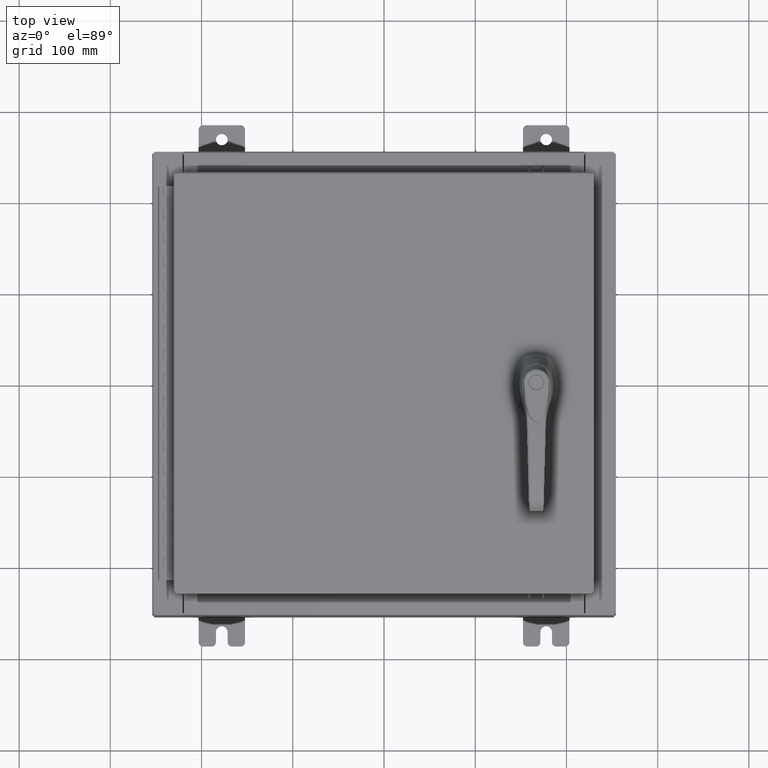
[diagram: clean part render]
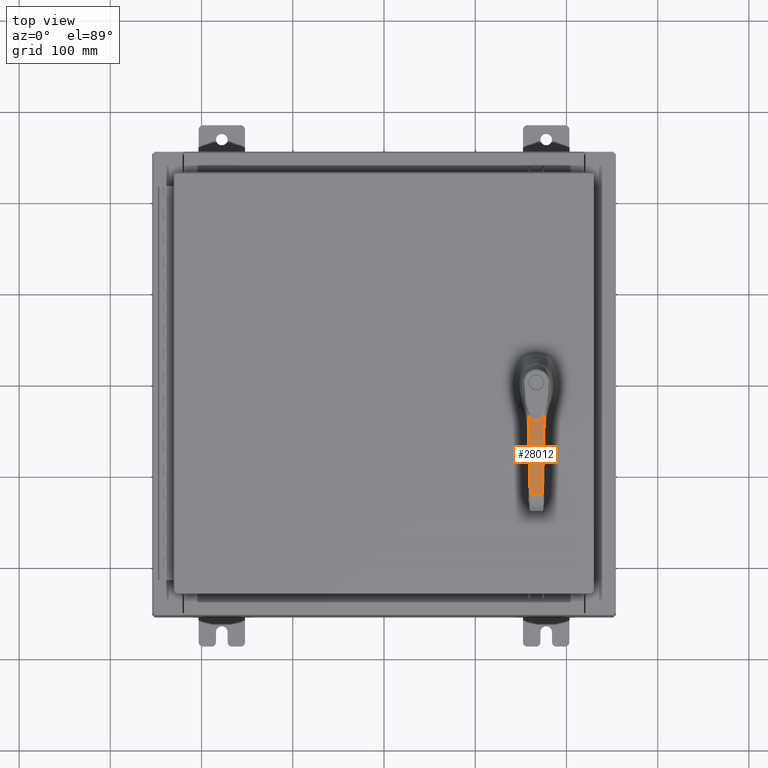
[diagram: same view with one face highlighted and labeled with its STEP entity id]
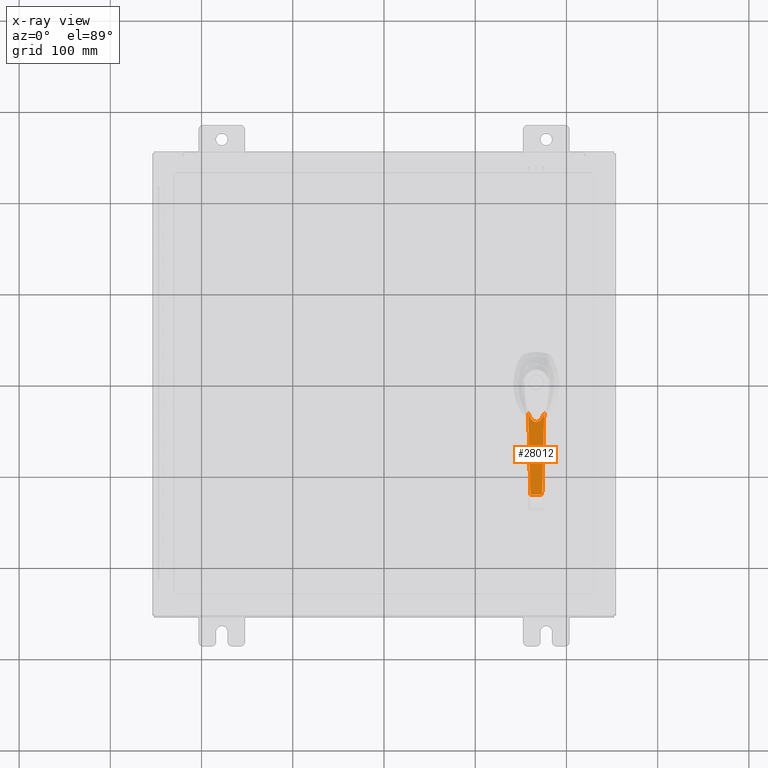
[diagram: x-ray of the same camera — body ghosted, the highlighted face saturated]
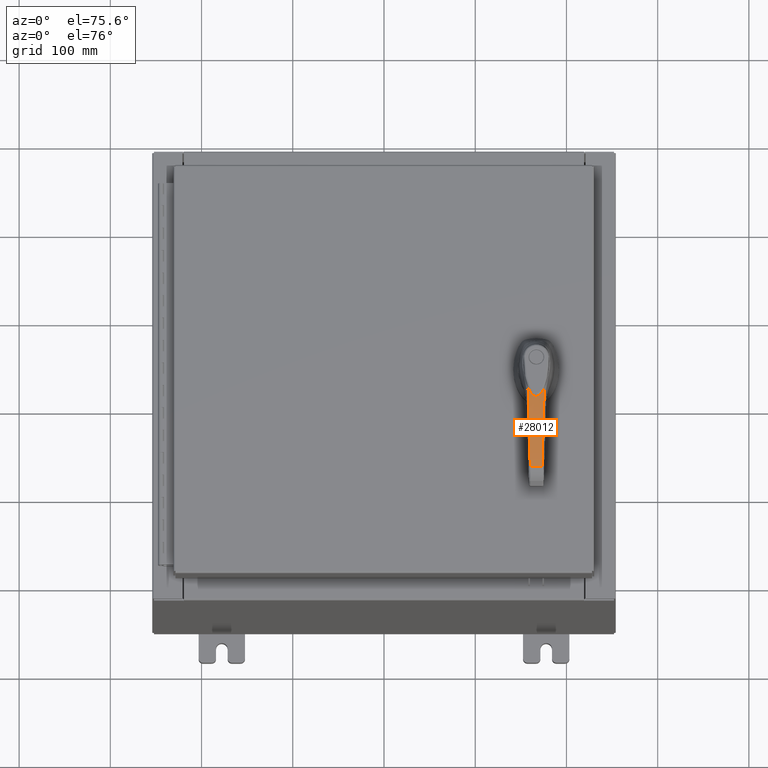
[diagram: same view with one face highlighted and labeled with its STEP entity id]
A machine part, top view. The second image highlights one B-rep face of the part: STEP entity #28012.
The next image is the same camera in x-ray: the body ghosted, the highlighted face saturated — about 0% of this face is hidden behind the body in this view.
A second angle (auxiliary view) of the same face is appended — the face is thin or edge-on in the first view.
In plain terms, the highlighted cylindrical surface (partial cylindrical patch) has radius 300 mm, axis along (-1, 0, 0).
Its self-contained STEP definition (entity closure, byte-faithful):
#600 = CARTESIAN_POINT ( 'NONE',  ( 4.805199877897497800, -0.2549857665720962600, 1.824333981427789200 ) ) ;
#1817 = CARTESIAN_POINT ( 'NONE',  ( 3.722113557932751800, -0.2831583025764871600, 1.939610180467802100 ) ) ;
#1870 = CARTESIAN_POINT ( 'NONE',  ( 1.285167403707582200, 0.3546133445978475500, 1.792860362760506900 ) ) ;
#2522 = CARTESIAN_POINT ( 'NONE',  ( 4.260082169442998000, 0.2691715254287476200, 1.889412627025917900 ) ) ;
#2900 = CARTESIAN_POINT ( 'NONE',  ( 3.180696913865973800, 0.2972412797304932500, 1.940904307400741700 ) ) ;
#5355 = CARTESIAN_POINT ( 'NONE',  ( 1.362201980543985300, 0.3225149545132401400, 1.804919336107090300 ) ) ;
#5728 = CARTESIAN_POINT ( 'NONE',  ( 1.516830157375129700, 0.2373842696045043200, 1.827543091604354200 ) ) ;
#6070 = CARTESIAN_POINT ( 'NONE',  ( 1.630415031557479000, 0.1335971382965835100, 1.842834560165933700 ) ) ;
#6442 = CARTESIAN_POINT ( 'NONE',  ( 1.666943250047645500, 0.06925946003727173600, 1.847514415332586000 ) ) ;
#6817 = CARTESIAN_POINT ( 'NONE',  ( 1.658104608024415500, -0.08997679606067111900, 1.846394063252973600 ) ) ;
#7175 = CARTESIAN_POINT ( 'NONE',  ( 1.549882932702339100, -0.2132559411452200100, 1.832109519501149200 ) ) ;
#7528 = CARTESIAN_POINT ( 'NONE',  ( 1.417457569571607400, -0.2959139997767265000, 1.813240278477140900 ) ) ;
#8184 = CARTESIAN_POINT ( 'NONE',  ( 1.285167403707582200, 0.3546133445978475500, 1.792860362760506900 ) ) ;
#10374 = CARTESIAN_POINT ( 'NONE',  ( 2.633561730653564600, -0.3114730037977832000, 1.942212103133131400 ) ) ;
#11059 = CARTESIAN_POINT ( 'NONE',  ( 3.842159367048334900, 0.2800416382408119600, 1.921681097564919200 ) ) ;
#11417 = CARTESIAN_POINT ( 'NONE',  ( 2.823583190880748700, 0.3065276448944568900, 1.937522127742032000 ) ) ;
#12804 = CARTESIAN_POINT ( 'NONE',  ( 4.805199877897498700, 6.099088612688667000, 1.824333981427796800 ) ) ;
#13891 = CARTESIAN_POINT ( 'NONE',  ( 1.395339831983435400, 0.3069710070873777900, 1.809941467447429500 ) ) ;
#14263 = CARTESIAN_POINT ( 'NONE',  ( 1.528395749153938200, 0.2292404292824162500, 1.829150185326992000 ) ) ;
#14643 = CARTESIAN_POINT ( 'NONE',  ( 1.632357006304432100, 0.1310003132830429600, 1.843086230139450200 ) ) ;
#14998 = CARTESIAN_POINT ( 'NONE',  ( 1.680175953285402800, 0.02266160196180658600, 1.849181196457984500 ) ) ;
#15350 = CARTESIAN_POINT ( 'NONE',  ( 1.644906487703452900, -0.1129549742528642200, 1.844705813593938900 ) ) ;
#15737 = CARTESIAN_POINT ( 'NONE',  ( 1.536332061329272400, -0.2234729747293736600, 1.830247252460752700 ) ) ;
#16106 = CARTESIAN_POINT ( 'NONE',  ( 1.413946465048461000, -0.2977029543502123800, 1.812719044079251300 ) ) ;
#16511 = VECTOR ( 'NONE', #81081, 39.37007874015748100 ) ;
#18001 = FACE_OUTER_BOUND ( 'NONE', #80325, .T. ) ;
#18954 = CARTESIAN_POINT ( 'NONE',  ( 1.549936709521859200, -0.3396595521461254200, 1.832114909085228900 ) ) ;
#19604 = CARTESIAN_POINT ( 'NONE',  ( 1.549936709521846800, 0.3396595521461276400, 1.832114909085227800 ) ) ;
#19627 = CARTESIAN_POINT ( 'NONE',  ( 3.523797029380388900, 0.2883190942661038000, 1.935318005950533900 ) ) ;
#20016 = CARTESIAN_POINT ( 'NONE',  ( 2.357254433555596100, 0.3186526733585897700, 1.915122674931474000 ) ) ;
#21757 = AXIS2_PLACEMENT_3D ( 'NONE', #46243, #72061, #80605 ) ;
#22515 = CARTESIAN_POINT ( 'NONE',  ( 1.408249181654880800, 0.3005784227495936200, 1.811871312986576200 ) ) ;
#22731 = VERTEX_POINT ( 'NONE', #600 ) ;
#22890 = CARTESIAN_POINT ( 'NONE',  ( 1.531099334706958400, 0.2272923127439849300, 1.829524427485566400 ) ) ;
#23236 = CARTESIAN_POINT ( 'NONE',  ( 1.632892665029204600, 0.1302765233638317500, 1.843155604267188800 ) ) ;
#23293 = CARTESIAN_POINT ( 'NONE',  ( 1.372892883534211400, -0.3469424119739025200, 1.806884306011914200 ) ) ;
#23600 = CARTESIAN_POINT ( 'NONE',  ( 1.678980772138699100, -0.02348651453882577600, 1.849031485695049800 ) ) ;
#23981 = CARTESIAN_POINT ( 'NONE',  ( 1.635815798552251900, -0.1262595667975484100, 1.843533802100511200 ) ) ;
#24348 = CARTESIAN_POINT ( 'NONE',  ( 1.533023177175514500, -0.2258956494556922100, 1.829790409659595200 ) ) ;
#24713 = ORIENTED_EDGE ( 'NONE', *, *, #37835, .F. ) ;
#24715 = CARTESIAN_POINT ( 'NONE',  ( 1.412839862362140300, -0.2982642543102374000, 1.812554586203149100 ) ) ;
#25375 = CARTESIAN_POINT ( 'NONE',  ( 1.461149604711797800, 0.3419711910575377000, 1.819977865742887100 ) ) ;
#26831 = VERTEX_POINT ( 'NONE', #19604 ) ;
#27218 = CARTESIAN_POINT ( 'NONE',  ( 4.266296091497493700, -0.2690033809075309500, 1.900627307953369100 ) ) ;
#28012 = ADVANCED_FACE ( 'NONE', ( #18001 ), #106138, .T. ) ;
#28287 = CARTESIAN_POINT ( 'NONE',  ( 3.354255696629979200, 0.2927274858646580200, 1.939252233246042200 ) ) ;
#28645 = CARTESIAN_POINT ( 'NONE',  ( 1.962192344927161000, 0.3289308373534579100, 1.881644855761428500 ) ) ;
#30991 = EDGE_CURVE ( 'NONE', #22731, #63968, #107341, .T. ) ;
#31128 = CARTESIAN_POINT ( 'NONE',  ( 1.411289339368781500, 0.2990482287359080300, 1.812323976823128300 ) ) ;
#31487 = CARTESIAN_POINT ( 'NONE',  ( 1.531841238162604800, 0.2267549729690697100, 1.829627039123031400 ) ) ;
#31847 = CARTESIAN_POINT ( 'NONE',  ( 1.647126988818375700, 0.1096758325861646300, 1.844991371880551300 ) ) ;
#32222 = CARTESIAN_POINT ( 'NONE',  ( 1.673618130089371300, -0.04931904063699860100, 1.848357284676167800 ) ) ;
#32570 = CARTESIAN_POINT ( 'NONE',  ( 1.633523690778699000, -0.1294182121702274500, 1.843237296713774200 ) ) ;
#32941 = CARTESIAN_POINT ( 'NONE',  ( 1.531958825236964300, -0.2266696006880501200, 1.829643296008423000 ) ) ;
#33303 = CARTESIAN_POINT ( 'NONE',  ( 1.331296485917110600, -0.3367782127205229400, 1.800234481340108100 ) ) ;
#36232 = B_SPLINE_CURVE_WITH_KNOTS ( 'NONE', 3,
 ( #8184, #50663, #25375, #85027 ),
 .UNSPECIFIED., .F., .F.,
 ( 4, 4 ),
 ( 0.0000000000000000000, 1.000000000000000000 ),
 .UNSPECIFIED. ) ;
#36812 = CARTESIAN_POINT ( 'NONE',  ( 3.255921162986642200, 0.2952847344197932500, 1.940502775483823500 ) ) ;
#37204 = CARTESIAN_POINT ( 'NONE',  ( 1.638260262526211000, 0.3373621368790610300, 1.844188585699166700 ) ) ;
#37835 = EDGE_CURVE ( 'NONE', #74363, #56092, #60963, .T. ) ;
#39296 = CARTESIAN_POINT ( 'NONE',  ( 1.285167403707582200, 0.3546133445978475500, 1.792860362760506900 ) ) ;
#39653 = CARTESIAN_POINT ( 'NONE',  ( 1.412147350919589000, 0.2986147853169404100, 1.812451616407730400 ) ) ;
#40037 = CARTESIAN_POINT ( 'NONE',  ( 1.572688659303551200, 0.1951527432348522400, 1.835214844775211200 ) ) ;
#40141 = ORIENTED_EDGE ( 'NONE', *, *, #30991, .T. ) ;
#40403 = CARTESIAN_POINT ( 'NONE',  ( 1.659580715408763200, 0.08662144301095860100, 1.846580881107003000 ) ) ;
#40759 = CARTESIAN_POINT ( 'NONE',  ( 1.668765304187866500, -0.06434175467436248400, 1.847744838486969500 ) ) ;
#41117 = CARTESIAN_POINT ( 'NONE',  ( 1.632785392386055400, -0.1304217021505222100, 1.843141712585303300 ) ) ;
#41492 = CARTESIAN_POINT ( 'NONE',  ( 1.496057899066953100, -0.2514591596072142700, 1.824640546464775000 ) ) ;
#42049 = VERTEX_POINT ( 'NONE', #1870 ) ;
#45021 = CARTESIAN_POINT ( 'NONE',  ( 4.805199877897500500, 0.2549857665720995400, 1.824333981427788100 ) ) ;
#45399 = CARTESIAN_POINT ( 'NONE',  ( 3.197470930382348100, 0.2968049740498405200, 1.940850218433543400 ) ) ;
#46243 = CARTESIAN_POINT ( 'NONE',  ( 3.149606299212603500, 0.3588687022006241700, -9.870078740157508100 ) ) ;
#48193 = CARTESIAN_POINT ( 'NONE',  ( 1.456517634884642700, 0.2752119614751065700, 1.818981777874296900 ) ) ;
#48552 = CARTESIAN_POINT ( 'NONE',  ( 1.609689720394131800, 0.1588428430745499600, 1.840131652460313500 ) ) ;
#48828 = CARTESIAN_POINT ( 'NONE',  ( 1.285167405151898900, -0.3546133440856402700, 1.792860362220509000 ) ) ;
#48913 = CARTESIAN_POINT ( 'NONE',  ( 1.665449941461012000, 0.07307405170699191000, 1.847325382728708200 ) ) ;
#48968 = CARTESIAN_POINT ( 'NONE',  ( 1.549936709521859200, -0.3396595521461254200, 1.832114909085228900 ) ) ;
#49307 = CARTESIAN_POINT ( 'NONE',  ( 1.667452722112523700, -0.06791437558086997600, 1.847578869016394800 ) ) ;
#49664 = CARTESIAN_POINT ( 'NONE',  ( 1.605775901944855900, -0.1635624813666075900, 1.839624697243182900 ) ) ;
#50017 = CARTESIAN_POINT ( 'NONE',  ( 1.450862142650990700, -0.2781988563434922300, 1.818152528769777100 ) ) ;
#50663 = CARTESIAN_POINT ( 'NONE',  ( 1.372892883534752700, 0.3469424119738809300, 1.806884306011986400 ) ) ;
#52404 = EDGE_CURVE ( 'NONE', #42049, #26831, #36232, .T. ) ;
#52679 = B_SPLINE_CURVE_WITH_KNOTS ( 'NONE', 3,
 ( #104059, #27218, #1817, #61512, #10374, #70084, #18954 ),
 .UNSPECIFIED., .F., .F.,
 ( 4, 3, 4 ),
 ( 0.0000000000000000000, 0.4999999999999983900, 1.000000000000000000 ),
 .UNSPECIFIED. ) ;
#53575 = CARTESIAN_POINT ( 'NONE',  ( 4.384581782162142900, 0.2659316760357955400, 1.876757077655752500 ) ) ;
#53844 = CARTESIAN_POINT ( 'NONE',  ( 1.308225132359816000, 0.3456984148396877200, 1.796546292019678000 ) ) ;
#53928 = CARTESIAN_POINT ( 'NONE',  ( 3.183455179332789400, 0.2971695341875286700, 1.940896711539998400 ) ) ;
#56092 = VERTEX_POINT ( 'NONE', #48828 ) ;
#56411 = CARTESIAN_POINT ( 'NONE',  ( 1.330367034998294600, 0.3365594585218298400, 1.800015887332631500 ) ) ;
#56764 = CARTESIAN_POINT ( 'NONE',  ( 1.500882007459664000, 0.2481468865976217700, 1.825310919166964500 ) ) ;
#57138 = CARTESIAN_POINT ( 'NONE',  ( 1.627642221730812900, 0.1372262118340440700, 1.842474734026389200 ) ) ;
#57516 = CARTESIAN_POINT ( 'NONE',  ( 1.666720180148476300, 0.06983946041972091700, 1.847486187034462300 ) ) ;
#57885 = CARTESIAN_POINT ( 'NONE',  ( 1.662946339963034200, -0.07969119123599420500, 1.847008659323605500 ) ) ;
#58258 = CARTESIAN_POINT ( 'NONE',  ( 1.567082441918977100, -0.1995284965863699800, 1.834452944274891600 ) ) ;
#58629 = CARTESIAN_POINT ( 'NONE',  ( 1.422341089794102200, -0.2934036132516535400, 1.813963700160034400 ) ) ;
#59843 = ORIENTED_EDGE ( 'NONE', *, *, #91224, .T. ) ;
#60963 = B_SPLINE_CURVE_WITH_KNOTS ( 'NONE', 3,
 ( #48968, #82992, #23293, #108732 ),
 .UNSPECIFIED., .F., .F.,
 ( 4, 4 ),
 ( 0.0000000000000000000, 1.000000000000000000 ),
 .UNSPECIFIED. ) ;
#61512 = CARTESIAN_POINT ( 'NONE',  ( 3.177837644293160400, -0.2973156531871335400, 1.940911141800473400 ) ) ;
#62188 = CARTESIAN_POINT ( 'NONE',  ( 3.988872018762672500, 0.2762265065312558000, 1.911874702511223000 ) ) ;
#62566 = CARTESIAN_POINT ( 'NONE',  ( 2.994844391632361300, 0.3020755544132426300, 1.941348543382798200 ) ) ;
#63968 = VERTEX_POINT ( 'NONE', #102425 ) ;
#65024 = CARTESIAN_POINT ( 'NONE',  ( 1.377774985390536600, 0.3154086851259946300, 1.807295794097445000 ) ) ;
#65400 = CARTESIAN_POINT ( 'NONE',  ( 1.524578228761909200, 0.2319618882066597800, 1.828620816553897500 ) ) ;
#65763 = CARTESIAN_POINT ( 'NONE',  ( 1.631777938687824800, 0.1317797834924201400, 1.843011216588310100 ) ) ;
#66128 = CARTESIAN_POINT ( 'NONE',  ( 1.675872596846177400, 0.04566907200706862800, 1.848644063507536100 ) ) ;
#66512 = CARTESIAN_POINT ( 'NONE',  ( 1.649525308882284500, -0.1053112417757835900, 1.845297665867068100 ) ) ;
#66888 = CARTESIAN_POINT ( 'NONE',  ( 1.540911026017882000, -0.2200747778046543400, 1.830878084273672900 ) ) ;
#67253 = CARTESIAN_POINT ( 'NONE',  ( 1.415001884902490300, -0.2971666495078749700, 1.812875826676425300 ) ) ;
#70084 = CARTESIAN_POINT ( 'NONE',  ( 2.089199057867315600, -0.3256326111308620600, 1.905831137458305200 ) ) ;
#70800 = CARTESIAN_POINT ( 'NONE',  ( 3.605464906671501400, 0.2861957975425992700, 1.932408694108106700 ) ) ;
#71169 = CARTESIAN_POINT ( 'NONE',  ( 2.504789629931729600, 0.3148162043671304300, 1.924408988684548600 ) ) ;
#72061 = DIRECTION ( 'NONE',  ( 1.638255005703863000E-029, -1.000000000000000000, -1.577721810442019400E-030 ) ) ;
#73631 = CARTESIAN_POINT ( 'NONE',  ( 1.403971242061125700, 0.3027154104630283000, 1.811233171745016100 ) ) ;
#73985 = CARTESIAN_POINT ( 'NONE',  ( 1.530290378760434900, 0.2278771327639638500, 1.829412508182429500 ) ) ;
#74344 = CARTESIAN_POINT ( 'NONE',  ( 1.632741932373676300, 0.1304805322846280300, 1.843136084596472400 ) ) ;
#74363 = VERTEX_POINT ( 'NONE', #91776 ) ;
#74724 = CARTESIAN_POINT ( 'NONE',  ( 1.680095335233363900, -0.01197136183687350400, 1.849171087712747400 ) ) ;
#75091 = CARTESIAN_POINT ( 'NONE',  ( 1.638941990221852300, -0.1218315539769589500, 1.843937560668221100 ) ) ;
#75439 = CARTESIAN_POINT ( 'NONE',  ( 1.534019329573107300, -0.2251692678404840200, 1.829928034573032400 ) ) ;
#75809 = CARTESIAN_POINT ( 'NONE',  ( 1.413242188827252800, -0.2980603697912286900, 1.812614391285418000 ) ) ;
#79332 = CARTESIAN_POINT ( 'NONE',  ( 3.397158093014662800, 0.2916119047857240700, 1.938425827258929000 ) ) ;
#79704 = CARTESIAN_POINT ( 'NONE',  ( 2.085957004588868000, 0.3257099898517534800, 1.893740539790306400 ) ) ;
#80325 = EDGE_LOOP ( 'NONE', ( #40141, #59843, #108194, #107502, #24713, #97583 ) ) ;
#80605 = DIRECTION ( 'NONE',  ( 0.0000000000000000000, 0.0000000000000000000, -1.000000000000000000 ) ) ;
#81081 = DIRECTION ( 'NONE',  ( -1.638255005703863000E-029, 1.000000000000000000, 1.577721810442019400E-030 ) ) ;
#82166 = CARTESIAN_POINT ( 'NONE',  ( 1.410378708594592000, 0.2995076315425608800, 1.812188464822338500 ) ) ;
#82541 = CARTESIAN_POINT ( 'NONE',  ( 1.531637965723841300, 0.2269023104898881000, 1.829598928321428200 ) ) ;
#82936 = CARTESIAN_POINT ( 'NONE',  ( 1.640565656399489900, 0.1198494022903232300, 1.844149003382676600 ) ) ;
#82992 = CARTESIAN_POINT ( 'NONE',  ( 1.461149604711532000, -0.3419711910575408700, 1.819977865742857100 ) ) ;
#83287 = CARTESIAN_POINT ( 'NONE',  ( 1.675677567251029800, -0.04071549074534289200, 1.848616337587199800 ) ) ;
#83646 = CARTESIAN_POINT ( 'NONE',  ( 1.634216720233404100, -0.1284710039474783500, 1.843326990127298200 ) ) ;
#84029 = CARTESIAN_POINT ( 'NONE',  ( 1.532357968586522100, -0.2263797702776761400, 1.829698477823366900 ) ) ;
#84396 = CARTESIAN_POINT ( 'NONE',  ( 1.373760058113478800, -0.3180463064242623500, 1.806743859184434300 ) ) ;
#85027 = CARTESIAN_POINT ( 'NONE',  ( 1.549936709521846800, 0.3396595521461276400, 1.832114909085227800 ) ) ;
#87924 = CARTESIAN_POINT ( 'NONE',  ( 3.288871157594101600, 0.2944278238416497300, 1.940143925120735500 ) ) ;
#88304 = CARTESIAN_POINT ( 'NONE',  ( 1.738344976384679200, 0.3347569108671116200, 1.856868895625627000 ) ) ;
#90367 = B_SPLINE_CURVE_WITH_KNOTS ( 'NONE', 3,
 ( #45021, #96154, #104743, #53575, #2522, #62188, #11059, #70800, #19627, #79332, #28287, #87924, #36812, #96523, #45399, #105102, #53928, #2900, #62566, #11417, #71169, #20016, #79704, #28645, #88304, #37204, #96878 ),
 .UNSPECIFIED., .F., .F.,
 ( 4, 2, 2, 2, 2, 2, 1, 1, 1, 2, 2, 2, 2, 2, 4 ),
 ( 0.0000000000000000000, 0.1250000000000013000, 0.2500000000000026100, 0.3750000000000038900, 0.4375000000000045500, 0.4687500000000051100, 0.4843750000000055500, 0.4921875000000056100, 0.4960937500000057700, 0.4980468750000059400, 0.5000000000000060000, 0.6250000000000045500, 0.7500000000000030000, 0.8750000000000015500, 1.000000000000000000 ),
 .UNSPECIFIED. ) ;
#90774 = CARTESIAN_POINT ( 'NONE',  ( 1.411895976838733400, 0.2987418508005054200, 1.812414227103911600 ) ) ;
#91138 = CARTESIAN_POINT ( 'NONE',  ( 1.553573932691917300, 0.2109698468301462700, 1.832631472685393400 ) ) ;
#91224 = EDGE_CURVE ( 'NONE', #63968, #26831, #90367, .T. ) ;
#91492 = CARTESIAN_POINT ( 'NONE',  ( 1.655649401556307200, 0.09432184503515574100, 1.846080186316506400 ) ) ;
#91776 = CARTESIAN_POINT ( 'NONE',  ( 1.549936709521859200, -0.3396595521461254200, 1.832114909085228900 ) ) ;
#91869 = CARTESIAN_POINT ( 'NONE',  ( 1.670501837927468100, -0.05933737364029191600, 1.847964213049008200 ) ) ;
#92244 = CARTESIAN_POINT ( 'NONE',  ( 1.633059957810177000, -0.1300495619729951900, 1.843177265309145400 ) ) ;
#92591 = CARTESIAN_POINT ( 'NONE',  ( 1.514556654445390100, -0.2392854525976186600, 1.827236800739581600 ) ) ;
#92949 = CARTESIAN_POINT ( 'NONE',  ( 1.285167405151898900, -0.3546133440856402700, 1.792860362220509000 ) ) ;
#94475 = EDGE_CURVE ( 'NONE', #22731, #74363, #52679, .T. ) ;
#96154 = CARTESIAN_POINT ( 'NONE',  ( 4.713819558154692200, 0.2573626924901474800, 1.837270814955575600 ) ) ;
#96523 = CARTESIAN_POINT ( 'NONE',  ( 3.217029300581204500, 0.2962962612095109100, 1.940761667420591900 ) ) ;
#96878 = CARTESIAN_POINT ( 'NONE',  ( 1.549936709521846800, 0.3396595521461276400, 1.832114909085227800 ) ) ;
#97583 = ORIENTED_EDGE ( 'NONE', *, *, #94475, .F. ) ;
#97742 = B_SPLINE_CURVE_WITH_KNOTS ( 'NONE', 3,
 ( #39296, #53844, #56411, #5355, #65024, #13891, #73631, #22515, #82166, #31128, #90774, #39653, #99341, #48193, #107946, #56764, #5728, #65400, #14263, #73985, #22890, #82541, #31487, #91138, #40037, #99693, #48552, #108328, #57138, #6070, #65763, #14643, #74344, #23236, #82936, #31847, #91492, #40403, #100073, #48913, #108678, #57516, #6442, #66128, #14998, #74724, #23600, #83287, #32222, #91869, #40759, #100445, #49307, #109045, #57885, #6817, #66512, #15350, #75091, #23981, #83646, #32570, #92244, #41117, #100806, #49664, #109440, #58258, #7175, #66888, #15737, #75439, #24348, #84029, #32941, #92591, #41492, #101167, #50017, #109796, #58629, #7528, #67253, #16106, #75809, #24715, #84396, #33303, #92949 ),
 .UNSPECIFIED., .F., .F.,
 ( 4, 2, 1, 1, 1, 1, 1, 2, 2, 2, 1, 1, 1, 1, 1, 2, 2, 2, 1, 1, 1, 1, 1, 2, 2, 2, 1, 1, 1, 2, 2, 2, 2, 1, 1, 1, 2, 2, 2, 1, 1, 1, 1, 2, 2, 2, 1, 1, 1, 1, 1, 2, 2, 2, 1, 1, 1, 1, 1, 2, 2, 4 ),
 ( 0.0000000000000000000, 0.06249999999999003600, 0.09374999999998538700, 0.1093749999999830600, 0.1171874999999821500, 0.1210937499999813100, 0.1230468749999808500, 0.1240234374999806500, 0.1249999999999804600, 0.1874999999999860900, 0.2187499999999889000, 0.2343749999999906500, 0.2421874999999914500, 0.2460937499999918700, 0.2480468749999917300, 0.2490234374999917000, 0.2499999999999916700, 0.3124999999999928400, 0.3437499999999932300, 0.3593749999999933900, 0.3671874999999934500, 0.3710937499999935100, 0.3730468749999932800, 0.3740234374999929500, 0.3749999999999926200, 0.4062499999999894000, 0.4218749999999877900, 0.4296874999999869500, 0.4335937499999864000, 0.4355468749999860700, 0.4374999999999857300, 0.4999999999999753500, 0.5312499999999701400, 0.5468749999999676900, 0.5546874999999662500, 0.5585937499999658100, 0.5605468749999654700, 0.5624999999999651400, 0.5937499999999605900, 0.6093749999999581400, 0.6171874999999569200, 0.6210937499999562600, 0.6230468749999559200, 0.6240234374999558100, 0.6249999999999555900, 0.6874999999999337200, 0.7187499999999227300, 0.7343749999999172900, 0.7421874999999146200, 0.7460937499999134000, 0.7480468749999127400, 0.7490234374999126300, 0.7499999999999126300, 0.8124999999999367200, 0.8437499999999484900, 0.8593749999999547000, 0.8671874999999578100, 0.8710937499999592500, 0.8730468749999597000, 0.8740234374999602500, 0.8749999999999607000, 1.000000000000000000 ),
 .UNSPECIFIED. ) ;
#99341 = CARTESIAN_POINT ( 'NONE',  ( 1.435195623636529500, 0.2869488096781786000, 1.815878705668511300 ) ) ;
#99693 = CARTESIAN_POINT ( 'NONE',  ( 1.597928116298624300, 0.1710148495156878800, 1.838578136496561900 ) ) ;
#100073 = CARTESIAN_POINT ( 'NONE',  ( 1.663589786831880300, 0.07759667621418286900, 1.847089689351793000 ) ) ;
#100445 = CARTESIAN_POINT ( 'NONE',  ( 1.667982851357447100, -0.06648546394591199600, 1.847645912295605900 ) ) ;
#100806 = CARTESIAN_POINT ( 'NONE',  ( 1.620322453436925400, -0.1472583990823344000, 1.841527598334624000 ) ) ;
#101167 = CARTESIAN_POINT ( 'NONE',  ( 1.466267725725019400, -0.2693476378157151400, 1.820376805866251500 ) ) ;
#102425 = CARTESIAN_POINT ( 'NONE',  ( 4.805199877897500500, 0.2549857665720995400, 1.824333981427788100 ) ) ;
#104059 = CARTESIAN_POINT ( 'NONE',  ( 4.805199877897497800, -0.2549857665720962600, 1.824333981427789200 ) ) ;
#104743 = CARTESIAN_POINT ( 'NONE',  ( 4.611449591161996200, 0.2600272595664953600, 1.850686182147244900 ) ) ;
#105102 = CARTESIAN_POINT ( 'NONE',  ( 3.189064689842294100, 0.2970236258625827400, 1.940879303231495700 ) ) ;
#106138 = CYLINDRICAL_SURFACE ( 'NONE', #21757, 11.81102362204727300 ) ;
#107341 = LINE ( 'NONE', #12804, #16511 ) ;
#107502 = ORIENTED_EDGE ( 'NONE', *, *, #109188, .T. ) ;
#107946 = CARTESIAN_POINT ( 'NONE',  ( 1.486437698170237000, 0.2572311655015999700, 1.823263412956684300 ) ) ;
#108194 = ORIENTED_EDGE ( 'NONE', *, *, #52404, .F. ) ;
#108328 = CARTESIAN_POINT ( 'NONE',  ( 1.621908635050492100, 0.1444618146254998400, 1.841728913890026400 ) ) ;
#108678 = CARTESIAN_POINT ( 'NONE',  ( 1.666216210166180800, 0.07113358953773796200, 1.847422397405537700 ) ) ;
#108732 = CARTESIAN_POINT ( 'NONE',  ( 1.285167405151898900, -0.3546133440856402700, 1.792860362220509000 ) ) ;
#109045 = CARTESIAN_POINT ( 'NONE',  ( 1.667157571439223900, -0.06869618003176038200, 1.847541531571271800 ) ) ;
#109188 = EDGE_CURVE ( 'NONE', #42049, #56092, #97742, .T. ) ;
#109440 = CARTESIAN_POINT ( 'NONE',  ( 1.580548218858692300, -0.1876082219816730400, 1.836261751761624000 ) ) ;
#109796 = CARTESIAN_POINT ( 'NONE',  ( 1.431996714045669500, -0.2883624919504046400, 1.815388736092753200 ) ) ;